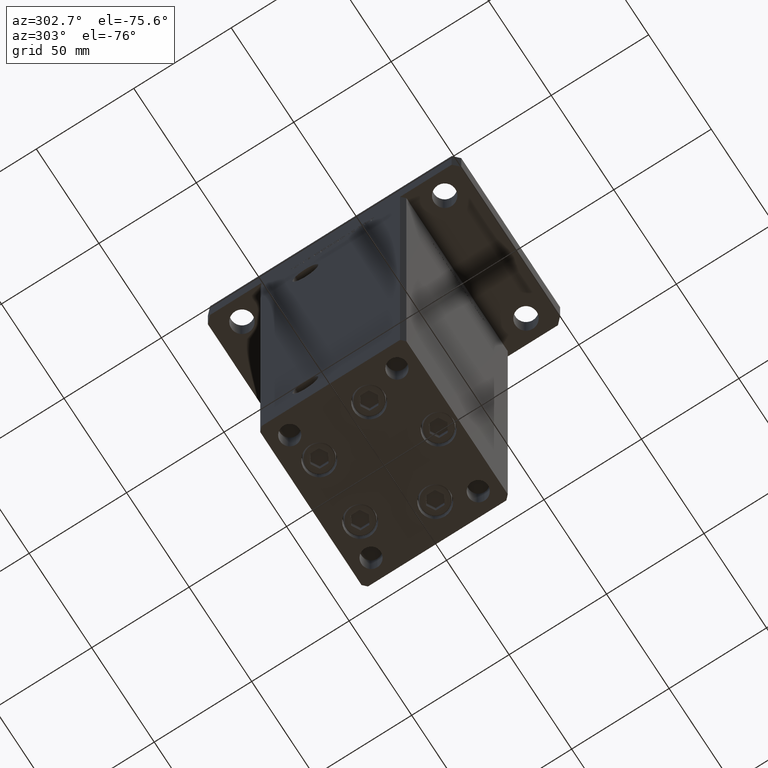
[diagram: clean part render]
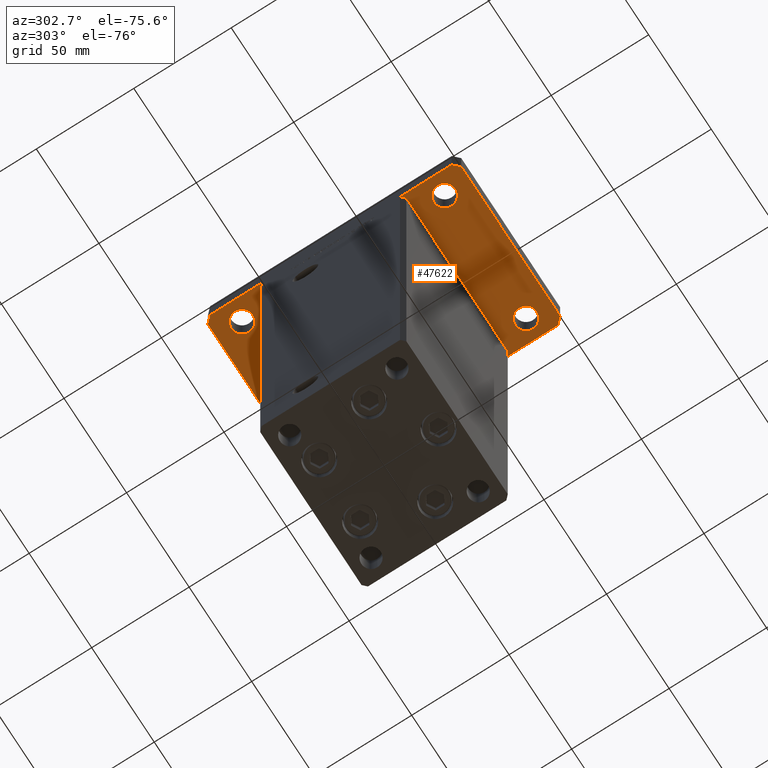
[diagram: same view with one face highlighted and labeled with its STEP entity id]
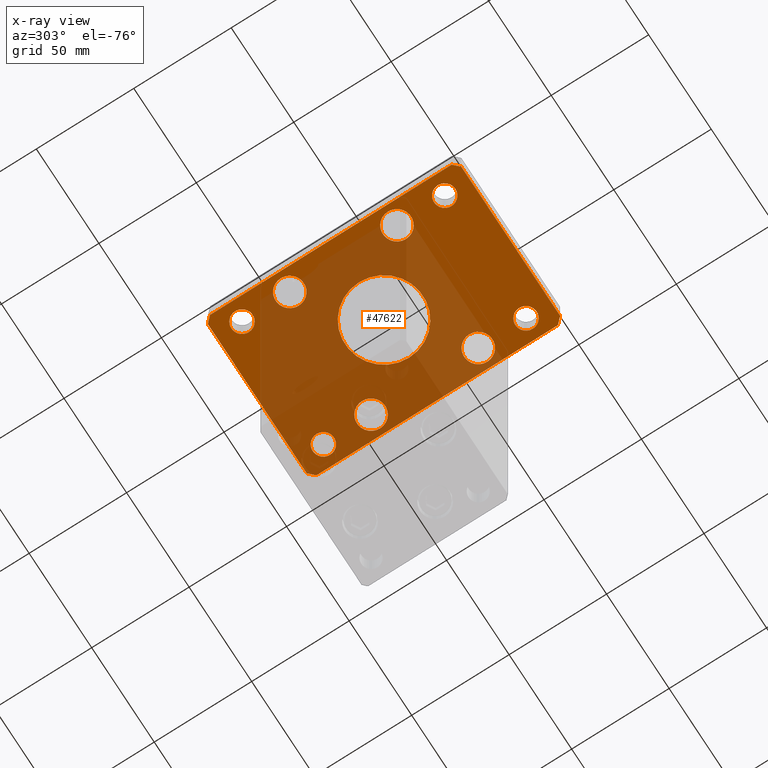
[diagram: x-ray of the same camera — body ghosted, the highlighted face saturated]
A machine part, auxiliary view. The second image highlights one B-rep face of the part: STEP entity #47622.
The next image is the same camera in x-ray: the body ghosted, the highlighted face saturated — about 61% of this face is hidden behind the body in this view.
In plain terms, the highlighted planar face has unit normal (0, 0, 1).
Its self-contained STEP definition (entity closure, byte-faithful):
#313 = DIRECTION ( 'NONE',  ( -0.7071067811865466846, -0.7071067811865483499, 0.000000000000000000 ) ) ;
#593 = CARTESIAN_POINT ( 'NONE',  ( -39.50000000000000000, -65.00000000000000000, 0.000000000000000000 ) ) ;
#620 = VERTEX_POINT ( 'NONE', #23212 ) ;
#829 = EDGE_CURVE ( 'NONE', #15190, #10081, #21240, .T. ) ;
#944 = CARTESIAN_POINT ( 'NONE',  ( 39.50000000000002842, 65.00000000000002842, 0.000000000000000000 ) ) ;
#1089 = EDGE_CURVE ( 'NONE', #4999, #23171, #24704, .T. ) ;
#1541 = VERTEX_POINT ( 'NONE', #32393 ) ;
#1718 = CARTESIAN_POINT ( 'NONE',  ( -39.75000000000000000, -27.50000000000000000, 0.000000000000000000 ) ) ;
#2035 = ORIENTED_EDGE ( 'NONE', *, *, #6990, .T. ) ;
#2905 = ORIENTED_EDGE ( 'NONE', *, *, #5590, .F. ) ;
#2922 = EDGE_LOOP ( 'NONE', ( #9256, #44833, #2905, #37570, #47468, #14482, #18075, #18473 ) ) ;
#3165 = AXIS2_PLACEMENT_3D ( 'NONE', #16731, #11563, #44658 ) ;
#3235 = CARTESIAN_POINT ( 'NONE',  ( -32.50000000000000000, 52.00000000000000000, 0.000000000000000000 ) ) ;
#3333 = DIRECTION ( 'NONE',  ( 0.000000000000000000, 0.000000000000000000, 1.000000000000000000 ) ) ;
#3356 = CARTESIAN_POINT ( 'NONE',  ( -32.49999999999997868, -52.00000000000000711, 0.000000000000000000 ) ) ;
#3479 = VERTEX_POINT ( 'NONE', #19232 ) ;
#3638 = DIRECTION ( 'NONE',  ( 1.000000000000000000, 0.000000000000000000, 0.000000000000000000 ) ) ;
#3671 = DIRECTION ( 'NONE',  ( 2.238352872228137677E-16, -1.000000000000000000, 0.000000000000000000 ) ) ;
#3835 = CARTESIAN_POINT ( 'NONE',  ( -39.50000000000003553, 65.00000000000000000, 0.000000000000000000 ) ) ;
#4013 = EDGE_LOOP ( 'NONE', ( #30334, #17256 ) ) ;
#4020 = EDGE_LOOP ( 'NONE', ( #2035, #22884 ) ) ;
#4249 = VECTOR ( 'NONE', #17411, 1000.000000000000000 ) ;
#4274 = EDGE_LOOP ( 'NONE', ( #22000, #14236 ) ) ;
#4375 = DIRECTION ( 'NONE',  ( 0.000000000000000000, 0.000000000000000000, 1.000000000000000000 ) ) ;
#4855 = FACE_BOUND ( 'NONE', #20800, .T. ) ;
#4863 = AXIS2_PLACEMENT_3D ( 'NONE', #45853, #4375, #12493 ) ;
#4999 = VERTEX_POINT ( 'NONE', #51386 ) ;
#5254 = EDGE_CURVE ( 'NONE', #10777, #1541, #23978, .T. ) ;
#5274 = CIRCLE ( 'NONE', #11409, 7.249999999999999112 ) ;
#5590 = EDGE_CURVE ( 'NONE', #38389, #620, #48938, .T. ) ;
#5922 = FACE_BOUND ( 'NONE', #39495, .T. ) ;
#6187 = DIRECTION ( 'NONE',  ( 1.000000000000000000, 0.000000000000000000, -0.000000000000000000 ) ) ;
#6266 = DIRECTION ( 'NONE',  ( 0.000000000000000000, 0.000000000000000000, -1.000000000000000000 ) ) ;
#6380 = DIRECTION ( 'NONE',  ( 0.000000000000000000, 0.000000000000000000, 1.000000000000000000 ) ) ;
#6990 = EDGE_CURVE ( 'NONE', #24863, #3479, #43835, .T. ) ;
#7170 = DIRECTION ( 'NONE',  ( 1.000000000000000000, 0.000000000000000000, 0.000000000000000000 ) ) ;
#7396 = DIRECTION ( 'NONE',  ( 1.000000000000000000, 0.000000000000000000, 0.000000000000000000 ) ) ;
#7403 = DIRECTION ( 'NONE',  ( 0.000000000000000000, 0.000000000000000000, 1.000000000000000000 ) ) ;
#7618 = AXIS2_PLACEMENT_3D ( 'NONE', #40318, #32176, #6187 ) ;
#7689 = DIRECTION ( 'NONE',  ( 1.000000000000000000, 0.000000000000000000, 0.000000000000000000 ) ) ;
#8573 = CIRCLE ( 'NONE', #21587, 5.499999999999994671 ) ;
#8608 = AXIS2_PLACEMENT_3D ( 'NONE', #47729, #6266, #23067 ) ;
#8640 = CARTESIAN_POINT ( 'NONE',  ( 42.50000000000000000, 62.00000000000000711, 0.000000000000000000 ) ) ;
#8800 = AXIS2_PLACEMENT_3D ( 'NONE', #11188, #3333, #7396 ) ;
#8821 = ORIENTED_EDGE ( 'NONE', *, *, #11387, .T. ) ;
#9076 = DIRECTION ( 'NONE',  ( -1.000000000000000000, -3.513364001978340512E-16, 0.000000000000000000 ) ) ;
#9173 = AXIS2_PLACEMENT_3D ( 'NONE', #23039, #48763, #43391 ) ;
#9256 = ORIENTED_EDGE ( 'NONE', *, *, #25067, .F. ) ;
#9757 = VERTEX_POINT ( 'NONE', #593 ) ;
#10081 = VERTEX_POINT ( 'NONE', #31385 ) ;
#10469 = CARTESIAN_POINT ( 'NONE',  ( 25.25000000000000000, 27.50000000000000000, 0.000000000000000000 ) ) ;
#10587 = EDGE_CURVE ( 'NONE', #620, #9757, #30129, .T. ) ;
#10777 = VERTEX_POINT ( 'NONE', #17265 ) ;
#10966 = CARTESIAN_POINT ( 'NONE',  ( 32.50000000000000000, 51.99999999999999289, 0.000000000000000000 ) ) ;
#11188 = CARTESIAN_POINT ( 'NONE',  ( -32.50000000000000000, -27.50000000000000000, 0.000000000000000000 ) ) ;
#11361 = DIRECTION ( 'NONE',  ( 0.000000000000000000, 0.000000000000000000, 1.000000000000000000 ) ) ;
#11387 = EDGE_CURVE ( 'NONE', #10081, #15190, #8573, .T. ) ;
#11409 = AXIS2_PLACEMENT_3D ( 'NONE', #16083, #7403, #29092 ) ;
#11563 = DIRECTION ( 'NONE',  ( 0.000000000000000000, 0.000000000000000000, 1.000000000000000000 ) ) ;
#11805 = VERTEX_POINT ( 'NONE', #1718 ) ;
#11843 = AXIS2_PLACEMENT_3D ( 'NONE', #40524, #40794, #3638 ) ;
#12116 = DIRECTION ( 'NONE',  ( 0.000000000000000000, 0.000000000000000000, 1.000000000000000000 ) ) ;
#12365 = DIRECTION ( 'NONE',  ( 0.000000000000000000, 0.000000000000000000, 1.000000000000000000 ) ) ;
#12493 = DIRECTION ( 'NONE',  ( 1.000000000000000000, 0.000000000000000000, 0.000000000000000000 ) ) ;
#12736 = DIRECTION ( 'NONE',  ( 1.000000000000000000, 0.000000000000000000, 0.000000000000000000 ) ) ;
#12811 = EDGE_CURVE ( 'NONE', #36193, #43692, #24454, .T. ) ;
#13063 = ORIENTED_EDGE ( 'NONE', *, *, #25969, .T. ) ;
#13110 = EDGE_CURVE ( 'NONE', #23171, #4999, #31973, .T. ) ;
#13479 = EDGE_CURVE ( 'NONE', #38408, #31057, #36335, .T. ) ;
#13826 = CARTESIAN_POINT ( 'NONE',  ( -26.99999999999998579, -52.00000000000000711, 0.000000000000000000 ) ) ;
#13941 = EDGE_CURVE ( 'NONE', #43692, #20288, #20851, .T. ) ;
#14051 = EDGE_CURVE ( 'NONE', #1541, #10777, #24232, .T. ) ;
#14074 = DIRECTION ( 'NONE',  ( 0.7071067811865459074, 0.7071067811865491270, 0.000000000000000000 ) ) ;
#14236 = ORIENTED_EDGE ( 'NONE', *, *, #30188, .T. ) ;
#14339 = DIRECTION ( 'NONE',  ( 0.000000000000000000, 0.000000000000000000, -1.000000000000000000 ) ) ;
#14448 = AXIS2_PLACEMENT_3D ( 'NONE', #32996, #12116, #20262 ) ;
#14482 = ORIENTED_EDGE ( 'NONE', *, *, #13941, .F. ) ;
#15190 = VERTEX_POINT ( 'NONE', #31783 ) ;
#15544 = ORIENTED_EDGE ( 'NONE', *, *, #14051, .T. ) ;
#15617 = VERTEX_POINT ( 'NONE', #44932 ) ;
#16083 = CARTESIAN_POINT ( 'NONE',  ( 32.50000000000000000, 27.50000000000000000, 0.000000000000000000 ) ) ;
#16369 = CARTESIAN_POINT ( 'NONE',  ( -32.50000000000000711, 27.50000000000000000, 0.000000000000000000 ) ) ;
#16731 = CARTESIAN_POINT ( 'NONE',  ( 32.50000000000000000, -27.50000000000000000, 0.000000000000000000 ) ) ;
#17053 = EDGE_CURVE ( 'NONE', #49811, #40409, #19134, .T. ) ;
#17256 = ORIENTED_EDGE ( 'NONE', *, *, #1089, .F. ) ;
#17265 = CARTESIAN_POINT ( 'NONE',  ( 37.99999999999997868, -52.00000000000000711, 0.000000000000000000 ) ) ;
#17411 = DIRECTION ( 'NONE',  ( 0.7071067811865483499, -0.7071067811865466846, 0.000000000000000000 ) ) ;
#18075 = ORIENTED_EDGE ( 'NONE', *, *, #12811, .F. ) ;
#18128 = FACE_OUTER_BOUND ( 'NONE', #2922, .T. ) ;
#18362 = AXIS2_PLACEMENT_3D ( 'NONE', #27201, #52139, #43749 ) ;
#18473 = ORIENTED_EDGE ( 'NONE', *, *, #40587, .F. ) ;
#18759 = ORIENTED_EDGE ( 'NONE', *, *, #5254, .T. ) ;
#18835 = ORIENTED_EDGE ( 'NONE', *, *, #17053, .T. ) ;
#19134 = CIRCLE ( 'NONE', #34679, 7.249999999999999112 ) ;
#19232 = CARTESIAN_POINT ( 'NONE',  ( 39.75000000000000000, 27.50000000000000000, 0.000000000000000000 ) ) ;
#19369 = DIRECTION ( 'NONE',  ( 0.000000000000000000, 0.000000000000000000, 1.000000000000000000 ) ) ;
#19820 = CARTESIAN_POINT ( 'NONE',  ( 39.50000000000002842, 65.00000000000002842, 0.000000000000000000 ) ) ;
#19979 = EDGE_CURVE ( 'NONE', #3479, #24863, #5274, .T. ) ;
#20262 = DIRECTION ( 'NONE',  ( 1.000000000000000000, 0.000000000000000000, 0.000000000000000000 ) ) ;
#20288 = VERTEX_POINT ( 'NONE', #19820 ) ;
#20316 = DIRECTION ( 'NONE',  ( 1.000000000000000000, 0.000000000000000000, 0.000000000000000000 ) ) ;
#20440 = ORIENTED_EDGE ( 'NONE', *, *, #48173, .T. ) ;
#20800 = EDGE_LOOP ( 'NONE', ( #15544, #18759 ) ) ;
#20851 = LINE ( 'NONE', #8640, #53638 ) ;
#21038 = ORIENTED_EDGE ( 'NONE', *, *, #36120, .T. ) ;
#21181 = LINE ( 'NONE', #3835, #35298 ) ;
#21240 = CIRCLE ( 'NONE', #52378, 5.499999999999994671 ) ;
#21479 = EDGE_LOOP ( 'NONE', ( #8821, #43260 ) ) ;
#21503 = CARTESIAN_POINT ( 'NONE',  ( -39.50000000000003553, 65.00000000000000000, 0.000000000000000000 ) ) ;
#21587 = AXIS2_PLACEMENT_3D ( 'NONE', #3235, #11361, #20316 ) ;
#22000 = ORIENTED_EDGE ( 'NONE', *, *, #39812, .T. ) ;
#22090 = LINE ( 'NONE', #51612, #35715 ) ;
#22200 = FACE_BOUND ( 'NONE', #25770, .T. ) ;
#22466 = FACE_BOUND ( 'NONE', #21479, .T. ) ;
#22756 = VERTEX_POINT ( 'NONE', #34994 ) ;
#22884 = ORIENTED_EDGE ( 'NONE', *, *, #19979, .T. ) ;
#22905 = CARTESIAN_POINT ( 'NONE',  ( 25.25000000000000000, -27.50000000000000000, 0.000000000000000000 ) ) ;
#23001 = CARTESIAN_POINT ( 'NONE',  ( -20.00000000000000000, 0.000000000000000000, 0.000000000000000000 ) ) ;
#23039 = CARTESIAN_POINT ( 'NONE',  ( -32.50000000000000000, -27.50000000000000000, 0.000000000000000000 ) ) ;
#23067 = DIRECTION ( 'NONE',  ( -1.000000000000000000, 0.000000000000000000, 0.000000000000000000 ) ) ;
#23128 = CARTESIAN_POINT ( 'NONE',  ( -25.25000000000000000, -27.50000000000000000, 0.000000000000000000 ) ) ;
#23171 = VERTEX_POINT ( 'NONE', #23001 ) ;
#23202 = CARTESIAN_POINT ( 'NONE',  ( 42.50000000000000000, -61.99999999999988631, 0.000000000000000000 ) ) ;
#23212 = CARTESIAN_POINT ( 'NONE',  ( -42.49999999999999289, -62.00000000000001421, 0.000000000000000000 ) ) ;
#23397 = EDGE_CURVE ( 'NONE', #52161, #11805, #32157, .T. ) ;
#23978 = CIRCLE ( 'NONE', #11843, 5.499999999999998224 ) ;
#24232 = CIRCLE ( 'NONE', #43299, 5.499999999999998224 ) ;
#24252 = EDGE_CURVE ( 'NONE', #35431, #37607, #29623, .T. ) ;
#24454 = LINE ( 'NONE', #23202, #46738 ) ;
#24538 = CARTESIAN_POINT ( 'NONE',  ( -42.50000000000002132, 62.00000000000000711, 0.000000000000000000 ) ) ;
#24704 = CIRCLE ( 'NONE', #43762, 20.00000000000000000 ) ;
#24863 = VERTEX_POINT ( 'NONE', #10469 ) ;
#24937 = CARTESIAN_POINT ( 'NONE',  ( -32.50000000000000000, 52.00000000000000000, 0.000000000000000000 ) ) ;
#25023 = DIRECTION ( 'NONE',  ( 0.000000000000000000, 0.000000000000000000, 1.000000000000000000 ) ) ;
#25067 = EDGE_CURVE ( 'NONE', #9757, #46505, #22090, .T. ) ;
#25770 = EDGE_LOOP ( 'NONE', ( #20440, #36950 ) ) ;
#25969 = EDGE_CURVE ( 'NONE', #40409, #49811, #34835, .T. ) ;
#26310 = CIRCLE ( 'NONE', #53118, 5.499999999999991118 ) ;
#26557 = CARTESIAN_POINT ( 'NONE',  ( -42.50000000000002132, 62.00000000000000711, 0.000000000000000000 ) ) ;
#27071 = DIRECTION ( 'NONE',  ( -1.000000000000000000, 0.000000000000000000, 0.000000000000000000 ) ) ;
#27201 = CARTESIAN_POINT ( 'NONE',  ( 32.50000000000000000, -27.50000000000000000, 0.000000000000000000 ) ) ;
#27302 = DIRECTION ( 'NONE',  ( -0.7071067811865417996, 0.7071067811865532349, 0.000000000000000000 ) ) ;
#27341 = CARTESIAN_POINT ( 'NONE',  ( 39.50000000000001421, -64.99999999999988631, 0.000000000000000000 ) ) ;
#27461 = VECTOR ( 'NONE', #3671, 1000.000000000000000 ) ;
#28199 = AXIS2_PLACEMENT_3D ( 'NONE', #10966, #6380, #7170 ) ;
#29092 = DIRECTION ( 'NONE',  ( 1.000000000000000000, 0.000000000000000000, 0.000000000000000000 ) ) ;
#29623 = CIRCLE ( 'NONE', #18362, 7.249999999999999112 ) ;
#29637 = CARTESIAN_POINT ( 'NONE',  ( 32.50000000000000000, 51.99999999999999289, 0.000000000000000000 ) ) ;
#29900 = CARTESIAN_POINT ( 'NONE',  ( -37.99999999999997868, -52.00000000000000711, 0.000000000000000000 ) ) ;
#29929 = EDGE_LOOP ( 'NONE', ( #30291, #52455 ) ) ;
#30129 = LINE ( 'NONE', #49928, #4249 ) ;
#30188 = EDGE_CURVE ( 'NONE', #22756, #15617, #26310, .T. ) ;
#30291 = ORIENTED_EDGE ( 'NONE', *, *, #24252, .T. ) ;
#30334 = ORIENTED_EDGE ( 'NONE', *, *, #13110, .F. ) ;
#30506 = CARTESIAN_POINT ( 'NONE',  ( -32.50000000000000711, 27.50000000000000000, 0.000000000000000000 ) ) ;
#30846 = FACE_BOUND ( 'NONE', #4013, .T. ) ;
#31035 = DIRECTION ( 'NONE',  ( 1.000000000000000000, 0.000000000000000000, 0.000000000000000000 ) ) ;
#31057 = VERTEX_POINT ( 'NONE', #29900 ) ;
#31385 = CARTESIAN_POINT ( 'NONE',  ( -38.00000000000000000, 52.00000000000000000, 0.000000000000000000 ) ) ;
#31783 = CARTESIAN_POINT ( 'NONE',  ( -27.00000000000000711, 52.00000000000000000, 0.000000000000000000 ) ) ;
#31873 = CARTESIAN_POINT ( 'NONE',  ( 39.75000000000000000, -27.50000000000000000, 0.000000000000000000 ) ) ;
#31973 = CIRCLE ( 'NONE', #8608, 20.00000000000000000 ) ;
#32157 = CIRCLE ( 'NONE', #8800, 7.249999999999999112 ) ;
#32176 = DIRECTION ( 'NONE',  ( 0.000000000000000000, 0.000000000000000000, 1.000000000000000000 ) ) ;
#32393 = CARTESIAN_POINT ( 'NONE',  ( 26.99999999999998579, -52.00000000000000711, 0.000000000000000000 ) ) ;
#32421 = DIRECTION ( 'NONE',  ( 1.000000000000000000, 0.000000000000000000, 0.000000000000000000 ) ) ;
#32489 = CARTESIAN_POINT ( 'NONE',  ( 42.50000000000000000, -61.99999999999988631, 0.000000000000000000 ) ) ;
#32521 = CIRCLE ( 'NONE', #28199, 5.499999999999991118 ) ;
#32881 = CARTESIAN_POINT ( 'NONE',  ( -39.75000000000000711, 27.50000000000000000, 0.000000000000000000 ) ) ;
#32996 = CARTESIAN_POINT ( 'NONE',  ( -32.49999999999997868, -52.00000000000000711, 0.000000000000000000 ) ) ;
#33160 = DIRECTION ( 'NONE',  ( 0.000000000000000000, 0.000000000000000000, 1.000000000000000000 ) ) ;
#34679 = AXIS2_PLACEMENT_3D ( 'NONE', #30506, #35633, #31035 ) ;
#34794 = VERTEX_POINT ( 'NONE', #21503 ) ;
#34811 = LINE ( 'NONE', #944, #52577 ) ;
#34835 = CIRCLE ( 'NONE', #41788, 7.249999999999999112 ) ;
#34994 = CARTESIAN_POINT ( 'NONE',  ( 37.99999999999999289, 51.99999999999999289, 0.000000000000000000 ) ) ;
#35137 = CIRCLE ( 'NONE', #9173, 7.249999999999999112 ) ;
#35298 = VECTOR ( 'NONE', #313, 1000.000000000000000 ) ;
#35336 = CIRCLE ( 'NONE', #3165, 7.249999999999999112 ) ;
#35431 = VERTEX_POINT ( 'NONE', #22905 ) ;
#35496 = AXIS2_PLACEMENT_3D ( 'NONE', #3356, #19369, #7689 ) ;
#35633 = DIRECTION ( 'NONE',  ( 0.000000000000000000, 0.000000000000000000, 1.000000000000000000 ) ) ;
#35715 = VECTOR ( 'NONE', #38625, 1000.000000000000000 ) ;
#36120 = EDGE_CURVE ( 'NONE', #11805, #52161, #35137, .T. ) ;
#36193 = VERTEX_POINT ( 'NONE', #32489 ) ;
#36335 = CIRCLE ( 'NONE', #35496, 5.499999999999994671 ) ;
#36950 = ORIENTED_EDGE ( 'NONE', *, *, #13479, .T. ) ;
#37570 = ORIENTED_EDGE ( 'NONE', *, *, #46487, .F. ) ;
#37607 = VERTEX_POINT ( 'NONE', #31873 ) ;
#37828 = CIRCLE ( 'NONE', #14448, 5.499999999999994671 ) ;
#37941 = PLANE ( 'NONE',  #7618 ) ;
#38389 = VERTEX_POINT ( 'NONE', #26557 ) ;
#38408 = VERTEX_POINT ( 'NONE', #13826 ) ;
#38625 = DIRECTION ( 'NONE',  ( 1.000000000000000000, 1.405345600791337191E-15, 0.000000000000000000 ) ) ;
#38733 = FACE_BOUND ( 'NONE', #4274, .T. ) ;
#38994 = FACE_BOUND ( 'NONE', #29929, .T. ) ;
#39495 = EDGE_LOOP ( 'NONE', ( #21038, #49948 ) ) ;
#39812 = EDGE_CURVE ( 'NONE', #15617, #22756, #32521, .T. ) ;
#40318 = CARTESIAN_POINT ( 'NONE',  ( 0.000000000000000000, 0.000000000000000000, 0.000000000000000000 ) ) ;
#40409 = VERTEX_POINT ( 'NONE', #40954 ) ;
#40524 = CARTESIAN_POINT ( 'NONE',  ( 32.49999999999997868, -52.00000000000000711, 0.000000000000000000 ) ) ;
#40587 = EDGE_CURVE ( 'NONE', #46505, #36193, #47672, .T. ) ;
#40794 = DIRECTION ( 'NONE',  ( 0.000000000000000000, 0.000000000000000000, 1.000000000000000000 ) ) ;
#40954 = CARTESIAN_POINT ( 'NONE',  ( -25.25000000000000711, 27.50000000000000000, 0.000000000000000000 ) ) ;
#41010 = DIRECTION ( 'NONE',  ( 0.000000000000000000, 1.000000000000000000, 0.000000000000000000 ) ) ;
#41487 = CARTESIAN_POINT ( 'NONE',  ( 42.50000000000000000, 62.00000000000000711, 0.000000000000000000 ) ) ;
#41788 = AXIS2_PLACEMENT_3D ( 'NONE', #16369, #33160, #49688 ) ;
#42007 = FACE_BOUND ( 'NONE', #52230, .T. ) ;
#43260 = ORIENTED_EDGE ( 'NONE', *, *, #829, .T. ) ;
#43299 = AXIS2_PLACEMENT_3D ( 'NONE', #44382, #12365, #32421 ) ;
#43391 = DIRECTION ( 'NONE',  ( 1.000000000000000000, 0.000000000000000000, 0.000000000000000000 ) ) ;
#43692 = VERTEX_POINT ( 'NONE', #41487 ) ;
#43749 = DIRECTION ( 'NONE',  ( 1.000000000000000000, 0.000000000000000000, 0.000000000000000000 ) ) ;
#43762 = AXIS2_PLACEMENT_3D ( 'NONE', #52265, #14339, #27071 ) ;
#43835 = CIRCLE ( 'NONE', #4863, 7.249999999999999112 ) ;
#44382 = CARTESIAN_POINT ( 'NONE',  ( 32.49999999999997868, -52.00000000000000711, 0.000000000000000000 ) ) ;
#44658 = DIRECTION ( 'NONE',  ( 1.000000000000000000, 0.000000000000000000, 0.000000000000000000 ) ) ;
#44833 = ORIENTED_EDGE ( 'NONE', *, *, #10587, .F. ) ;
#44932 = CARTESIAN_POINT ( 'NONE',  ( 27.00000000000001421, 51.99999999999999289, 0.000000000000000000 ) ) ;
#45548 = VECTOR ( 'NONE', #14074, 1000.000000000000114 ) ;
#45853 = CARTESIAN_POINT ( 'NONE',  ( 32.50000000000000000, 27.50000000000000000, 0.000000000000000000 ) ) ;
#46487 = EDGE_CURVE ( 'NONE', #34794, #38389, #21181, .T. ) ;
#46505 = VERTEX_POINT ( 'NONE', #49909 ) ;
#46738 = VECTOR ( 'NONE', #41010, 1000.000000000000000 ) ;
#47393 = FACE_BOUND ( 'NONE', #4020, .T. ) ;
#47468 = ORIENTED_EDGE ( 'NONE', *, *, #49530, .F. ) ;
#47622 = ADVANCED_FACE ( 'NONE', ( #30846, #18128, #22200, #38733, #22466, #5922, #38994, #47393, #42007, #4855 ), #37941, .F. ) ;
#47672 = LINE ( 'NONE', #27341, #45548 ) ;
#47729 = CARTESIAN_POINT ( 'NONE',  ( 0.000000000000000000, 0.000000000000000000, 0.000000000000000000 ) ) ;
#47803 = EDGE_CURVE ( 'NONE', #37607, #35431, #35336, .T. ) ;
#48173 = EDGE_CURVE ( 'NONE', #31057, #38408, #37828, .T. ) ;
#48763 = DIRECTION ( 'NONE',  ( 0.000000000000000000, 0.000000000000000000, 1.000000000000000000 ) ) ;
#48938 = LINE ( 'NONE', #24538, #27461 ) ;
#49530 = EDGE_CURVE ( 'NONE', #20288, #34794, #34811, .T. ) ;
#49688 = DIRECTION ( 'NONE',  ( 1.000000000000000000, 0.000000000000000000, 0.000000000000000000 ) ) ;
#49811 = VERTEX_POINT ( 'NONE', #32881 ) ;
#49870 = DIRECTION ( 'NONE',  ( 0.000000000000000000, 0.000000000000000000, 1.000000000000000000 ) ) ;
#49909 = CARTESIAN_POINT ( 'NONE',  ( 39.50000000000001421, -64.99999999999988631, 0.000000000000000000 ) ) ;
#49928 = CARTESIAN_POINT ( 'NONE',  ( -42.49999999999999289, -62.00000000000001421, 0.000000000000000000 ) ) ;
#49948 = ORIENTED_EDGE ( 'NONE', *, *, #23397, .T. ) ;
#50760 = DIRECTION ( 'NONE',  ( 1.000000000000000000, 0.000000000000000000, 0.000000000000000000 ) ) ;
#51386 = CARTESIAN_POINT ( 'NONE',  ( 20.00000000000000000, 2.449293598294706513E-15, 0.000000000000000000 ) ) ;
#51612 = CARTESIAN_POINT ( 'NONE',  ( -39.50000000000000000, -65.00000000000000000, 0.000000000000000000 ) ) ;
#52139 = DIRECTION ( 'NONE',  ( 0.000000000000000000, 0.000000000000000000, 1.000000000000000000 ) ) ;
#52161 = VERTEX_POINT ( 'NONE', #23128 ) ;
#52230 = EDGE_LOOP ( 'NONE', ( #18835, #13063 ) ) ;
#52265 = CARTESIAN_POINT ( 'NONE',  ( 0.000000000000000000, 0.000000000000000000, 0.000000000000000000 ) ) ;
#52378 = AXIS2_PLACEMENT_3D ( 'NONE', #24937, #49870, #12736 ) ;
#52455 = ORIENTED_EDGE ( 'NONE', *, *, #47803, .T. ) ;
#52577 = VECTOR ( 'NONE', #9076, 1000.000000000000000 ) ;
#53118 = AXIS2_PLACEMENT_3D ( 'NONE', #29637, #25023, #50760 ) ;
#53638 = VECTOR ( 'NONE', #27302, 1000.000000000000000 ) ;